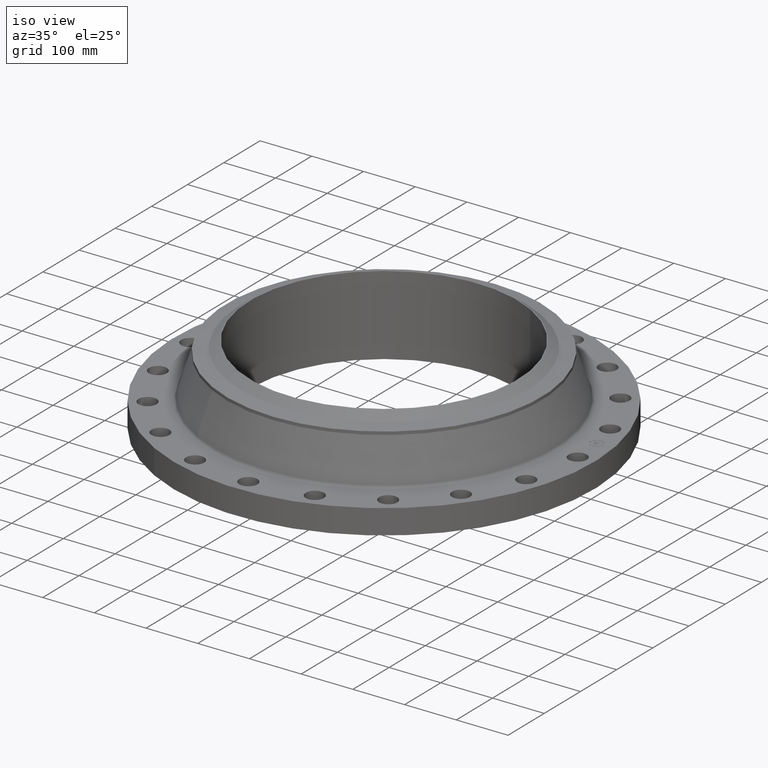
[diagram: clean part render]
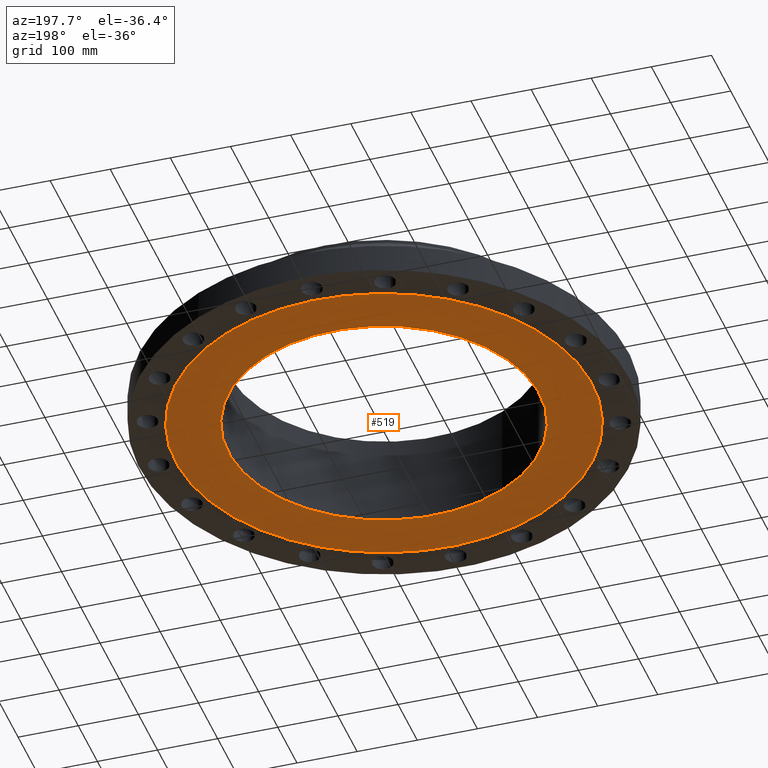
[diagram: tour spotlight — one face highlighted and labeled with its STEP entity id]
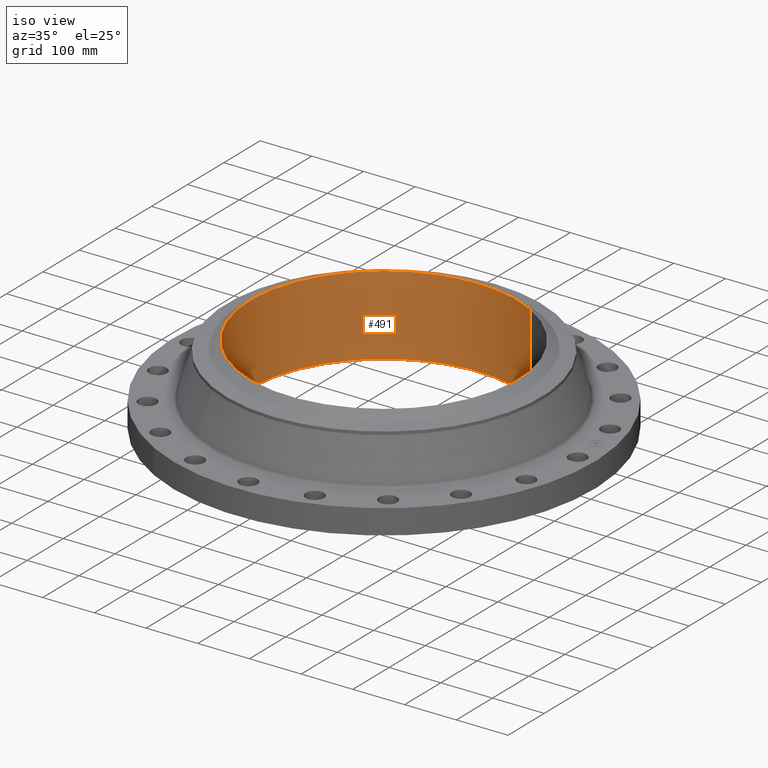
[diagram: tour spotlight — one face highlighted and labeled with its STEP entity id]
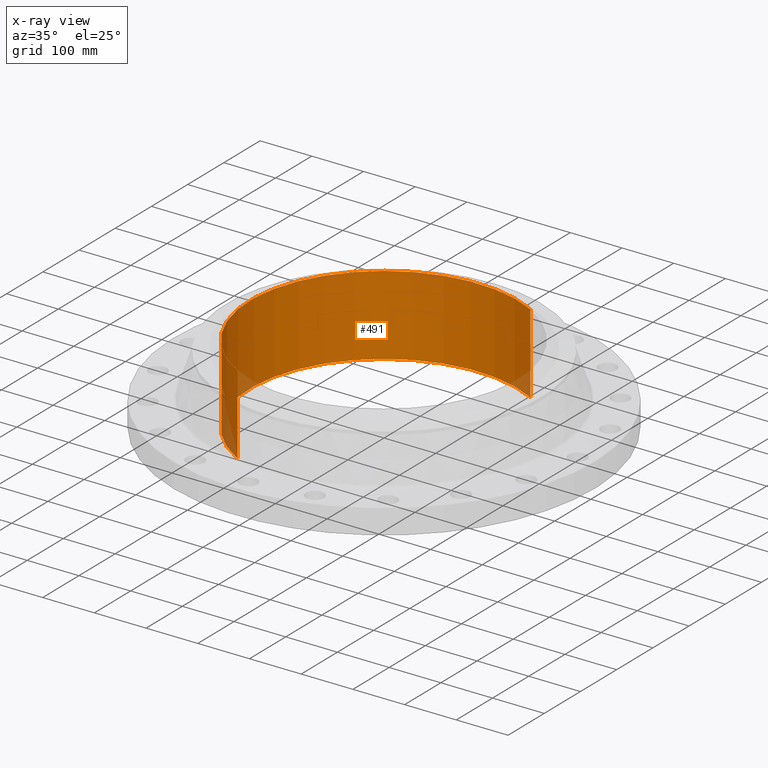
[diagram: x-ray of the same camera — body ghosted, this tour face saturated]
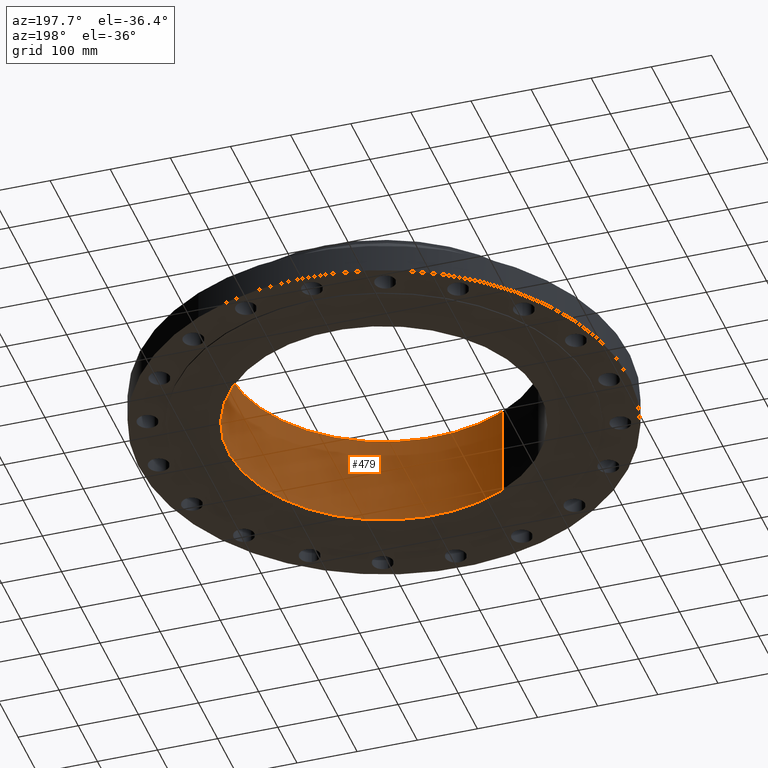
[diagram: tour spotlight — one face highlighted and labeled with its STEP entity id]
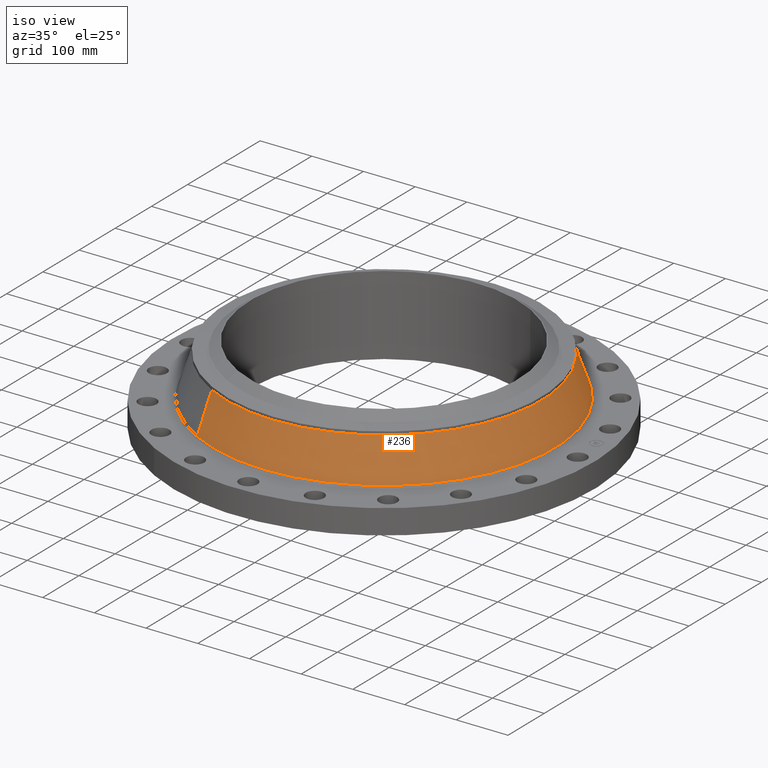
[diagram: tour spotlight — one face highlighted and labeled with its STEP entity id]
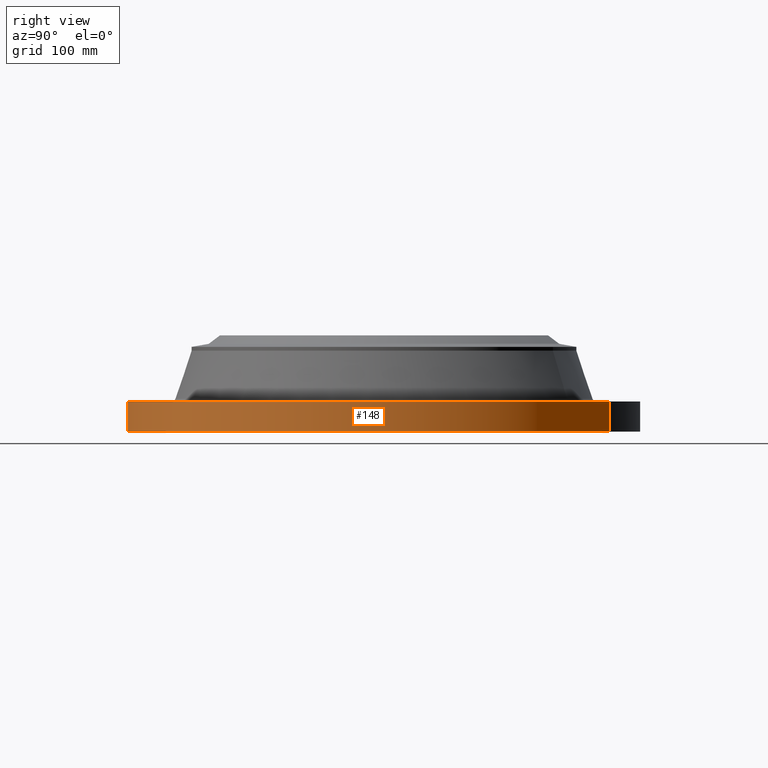
[diagram: tour spotlight — one face highlighted and labeled with its STEP entity id]
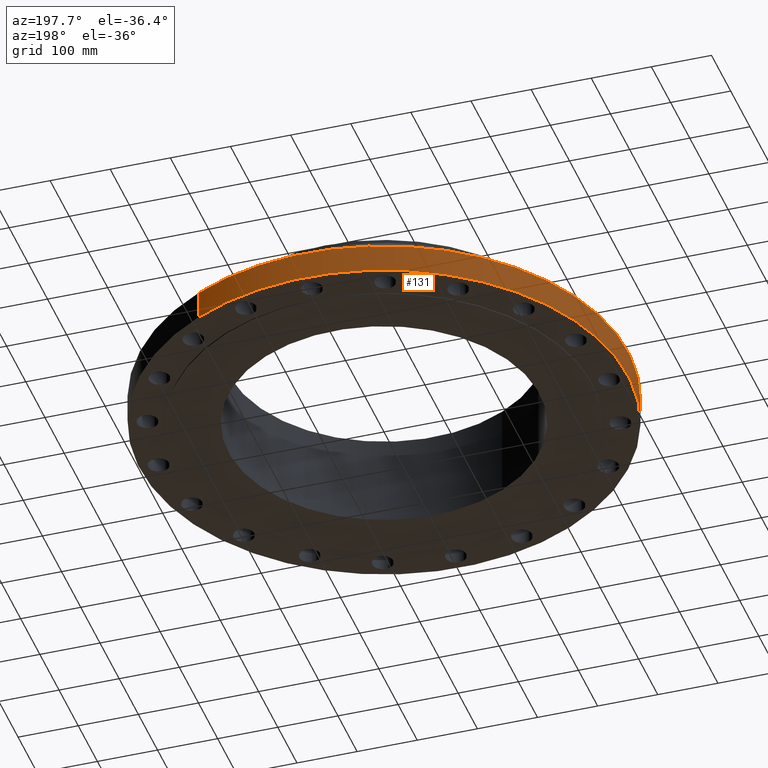
[diagram: tour spotlight — one face highlighted and labeled with its STEP entity id]
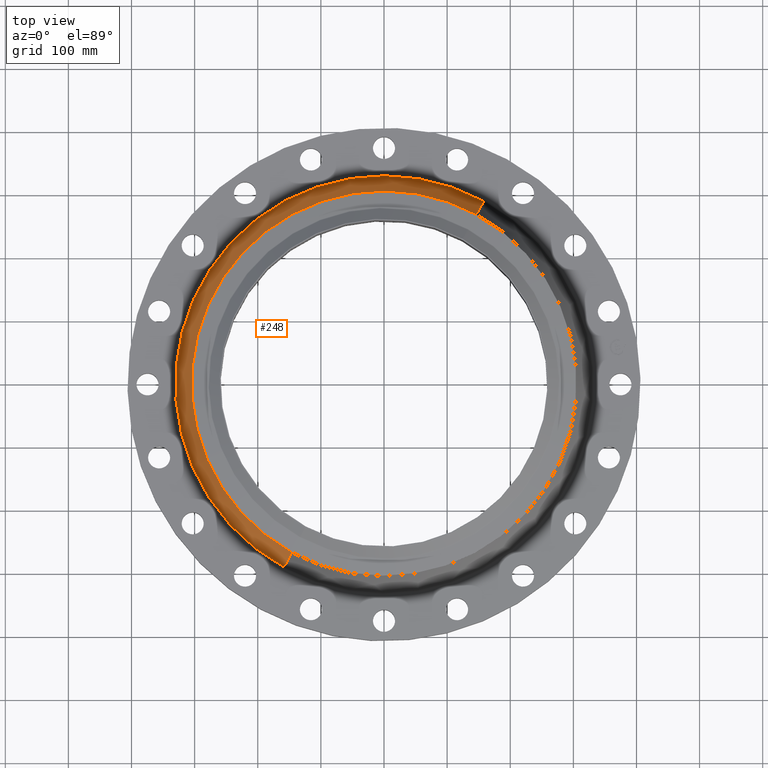
[diagram: tour spotlight — one face highlighted and labeled with its STEP entity id]
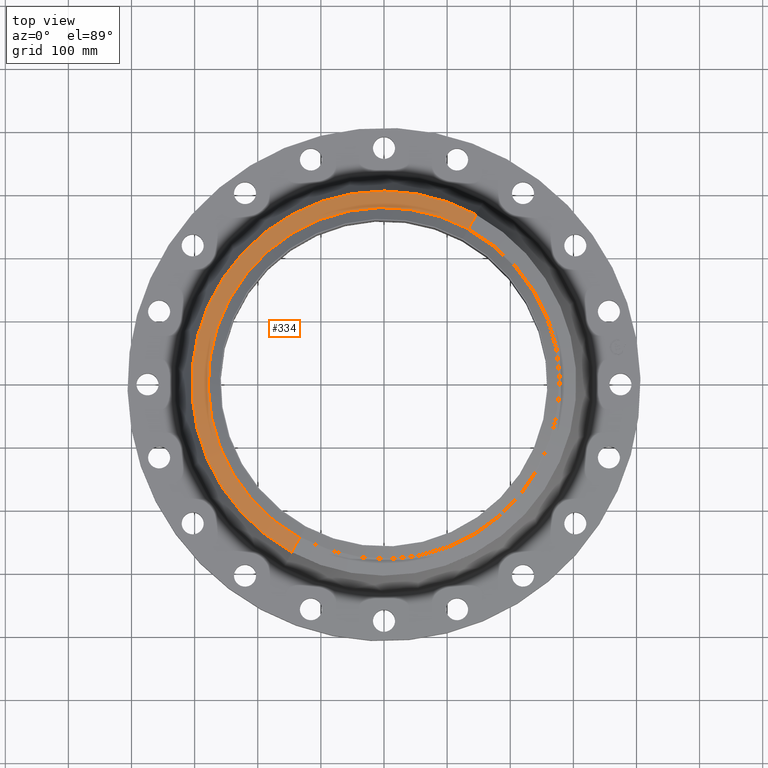
[diagram: tour spotlight — one face highlighted and labeled with its STEP entity id]
A machine part: a face-by-face anatomy tour. The part has 447 B-rep faces; the first image is the clean iso view, then the 8 largest visible faces are spotlighted one at a time (largest first), each with its STEP entity span.

Face 1 — auxiliary view, entity #519. In plain terms, the highlighted planar face has unit normal (0, 0, -1).
Definition (entity closure, byte-faithful):
#463=AXIS2_PLACEMENT_3D('Circle Axis2P3D',#461,#462,$) ;
#482=AXIS2_PLACEMENT_3D('Circle Axis2P3D',#480,#481,$) ;
#495=AXIS2_PLACEMENT_3D('Plane Axis2P3D',#492,#493,#494) ;
#499=AXIS2_PLACEMENT_3D('Circle Axis2P3D',#497,#498,$) ;
#508=AXIS2_PLACEMENT_3D('Circle Axis2P3D',#506,#507,$) ;
#458=CARTESIAN_POINT('Vertex',(4.88438738732,8.94081114057,-0.0630000000003)) ;
#461=CARTESIAN_POINT('Axis2P3D Location',(0.,0.,-0.0630000000003)) ;
#465=CARTESIAN_POINT('Vertex',(-4.88438738732,-8.94081114057,-0.0630000000003)) ;
#480=CARTESIAN_POINT('Axis2P3D Location',(0.,0.,-0.0630000000003)) ;
#492=CARTESIAN_POINT('Axis2P3D Location',(0.,10.188,-0.0630000000003)) ;
#497=CARTESIAN_POINT('Axis2P3D Location',(0.,0.,-0.0630000000003)) ;
#501=CARTESIAN_POINT('Vertex',(-6.53217296351,-11.9570624058,-0.0630000000003)) ;
#503=CARTESIAN_POINT('Vertex',(6.53217296351,11.9570624058,-0.0630000000003)) ;
#506=CARTESIAN_POINT('Axis2P3D Location',(0.,0.,-0.0630000000003)) ;
#462=DIRECTION('Axis2P3D Direction',(0.,0.,-0.0393700787402)) ;
#481=DIRECTION('Axis2P3D Direction',(0.,0.,-0.0393700787402)) ;
#493=DIRECTION('Axis2P3D Direction',(0.,0.,-0.0393700787402)) ;
#494=DIRECTION('Axis2P3D XDirection',(0.0393700787402,0.,0.)) ;
#498=DIRECTION('Axis2P3D Direction',(0.,0.,-0.0393700787402)) ;
#507=DIRECTION('Axis2P3D Direction',(0.,0.,-0.0393700787402)) ;
#512=ORIENTED_EDGE('',*,*,#505,.T.) ;
#513=ORIENTED_EDGE('',*,*,#510,.T.) ;
#516=ORIENTED_EDGE('',*,*,#467,.F.) ;
#517=ORIENTED_EDGE('',*,*,#484,.F.) ;
#518=FACE_BOUND('',#515,.T.) ;
#519=ADVANCED_FACE('PartBody',(#514,#518),#496,.T.) ;
#464=CIRCLE('generated circle',#463,10.188) ;
#483=CIRCLE('generated circle',#482,10.188) ;
#500=CIRCLE('generated circle',#499,13.6250000001) ;
#509=CIRCLE('generated circle',#508,13.6250000001) ;
#467=EDGE_CURVE('',#459,#466,#464,.T.) ;
#484=EDGE_CURVE('',#466,#459,#483,.T.) ;
#505=EDGE_CURVE('',#502,#504,#500,.T.) ;
#510=EDGE_CURVE('',#504,#502,#509,.T.) ;
#511=EDGE_LOOP('',(#512,#513)) ;
#515=EDGE_LOOP('',(#516,#517)) ;
#514=FACE_OUTER_BOUND('',#511,.T.) ;
#496=PLANE('',#495) ;
#459=VERTEX_POINT('',#458) ;
#466=VERTEX_POINT('',#465) ;
#502=VERTEX_POINT('',#501) ;
#504=VERTEX_POINT('',#503) ;

Face 2 — iso view, entity #491. An x-ray twin of the same camera follows (body ghosted, this face saturated) — the face is partly hidden behind the body. In plain terms, the highlighted cylindrical surface (partial cylindrical patch) has radius 258.775 mm, axis along (0, 0, -1).
Definition (entity closure, byte-faithful):
#432=AXIS2_PLACEMENT_3D('Circle Axis2P3D',#430,#431,$) ;
#452=AXIS2_PLACEMENT_3D('Cylinder Axis2P3D',#449,#450,#451) ;
#482=AXIS2_PLACEMENT_3D('Circle Axis2P3D',#480,#481,$) ;
#430=CARTESIAN_POINT('Axis2P3D Location',(-2.23792987641E-015,-1.1189649382E-015,6.00000000002)) ;
#434=CARTESIAN_POINT('Vertex',(-4.88438738732,-8.94081114057,6.00000000002)) ;
#436=CARTESIAN_POINT('Vertex',(4.88438738732,8.94081114057,6.00000000002)) ;
#449=CARTESIAN_POINT('Axis2P3D Location',(0.,0.,3.01850000001)) ;
#454=CARTESIAN_POINT('Line Origine',(4.88438738732,8.94081114057,2.96850000001)) ;
#458=CARTESIAN_POINT('Vertex',(4.88438738732,8.94081114057,-0.0630000000003)) ;
#465=CARTESIAN_POINT('Vertex',(-4.88438738732,-8.94081114057,-0.0630000000003)) ;
#468=CARTESIAN_POINT('Line Origine',(-4.88438738732,-8.94081114057,2.96850000001)) ;
#480=CARTESIAN_POINT('Axis2P3D Location',(0.,0.,-0.0630000000003)) ;
#431=DIRECTION('Axis2P3D Direction',(0.,-0.,-0.0393700787402)) ;
#450=DIRECTION('Axis2P3D Direction',(0.,0.,-0.0393700787402)) ;
#451=DIRECTION('Axis2P3D XDirection',(-0.0188750212049,-0.0345504945626,0.)) ;
#455=DIRECTION('Vector Direction',(0.,0.,-0.0393700787402)) ;
#469=DIRECTION('Vector Direction',(0.,0.,-0.0393700787402)) ;
#481=DIRECTION('Axis2P3D Direction',(0.,0.,-0.0393700787402)) ;
#456=VECTOR('Line Direction',#455,0.0393700787402) ;
#470=VECTOR('Line Direction',#469,0.0393700787402) ;
#486=ORIENTED_EDGE('',*,*,#472,.T.) ;
#487=ORIENTED_EDGE('',*,*,#484,.T.) ;
#488=ORIENTED_EDGE('',*,*,#460,.F.) ;
#489=ORIENTED_EDGE('',*,*,#438,.F.) ;
#491=ADVANCED_FACE('PartBody',(#490),#453,.F.) ;
#433=CIRCLE('generated circle',#432,10.188) ;
#483=CIRCLE('generated circle',#482,10.188) ;
#453=CYLINDRICAL_SURFACE('generated cylinder',#452,10.188) ;
#438=EDGE_CURVE('',#435,#437,#433,.T.) ;
#460=EDGE_CURVE('',#437,#459,#457,.T.) ;
#472=EDGE_CURVE('',#435,#466,#471,.T.) ;
#484=EDGE_CURVE('',#466,#459,#483,.T.) ;
#485=EDGE_LOOP('',(#486,#487,#488,#489)) ;
#490=FACE_OUTER_BOUND('',#485,.T.) ;
#457=LINE('Line',#454,#456) ;
#471=LINE('Line',#468,#470) ;
#435=VERTEX_POINT('',#434) ;
#437=VERTEX_POINT('',#436) ;
#459=VERTEX_POINT('',#458) ;
#466=VERTEX_POINT('',#465) ;

Face 3 — auxiliary view, entity #479. In plain terms, the highlighted cylindrical surface (partial cylindrical patch) has radius 258.775 mm, axis along (0, 0, -1).
Definition (entity closure, byte-faithful):
#441=AXIS2_PLACEMENT_3D('Circle Axis2P3D',#439,#440,$) ;
#452=AXIS2_PLACEMENT_3D('Cylinder Axis2P3D',#449,#450,#451) ;
#463=AXIS2_PLACEMENT_3D('Circle Axis2P3D',#461,#462,$) ;
#434=CARTESIAN_POINT('Vertex',(-4.88438738732,-8.94081114057,6.00000000002)) ;
#436=CARTESIAN_POINT('Vertex',(4.88438738732,8.94081114057,6.00000000002)) ;
#439=CARTESIAN_POINT('Axis2P3D Location',(4.47585975282E-015,5.59482469102E-016,6.00000000002)) ;
#449=CARTESIAN_POINT('Axis2P3D Location',(0.,0.,3.01850000001)) ;
#454=CARTESIAN_POINT('Line Origine',(4.88438738732,8.94081114057,2.96850000001)) ;
#458=CARTESIAN_POINT('Vertex',(4.88438738732,8.94081114057,-0.0630000000003)) ;
#461=CARTESIAN_POINT('Axis2P3D Location',(0.,0.,-0.0630000000003)) ;
#465=CARTESIAN_POINT('Vertex',(-4.88438738732,-8.94081114057,-0.0630000000003)) ;
#468=CARTESIAN_POINT('Line Origine',(-4.88438738732,-8.94081114057,2.96850000001)) ;
#440=DIRECTION('Axis2P3D Direction',(0.,-0.,-0.0393700787402)) ;
#450=DIRECTION('Axis2P3D Direction',(0.,0.,-0.0393700787402)) ;
#451=DIRECTION('Axis2P3D XDirection',(-0.0188750212049,-0.0345504945626,0.)) ;
#455=DIRECTION('Vector Direction',(0.,0.,-0.0393700787402)) ;
#462=DIRECTION('Axis2P3D Direction',(0.,0.,-0.0393700787402)) ;
#469=DIRECTION('Vector Direction',(0.,0.,-0.0393700787402)) ;
#456=VECTOR('Line Direction',#455,0.0393700787402) ;
#470=VECTOR('Line Direction',#469,0.0393700787402) ;
#474=ORIENTED_EDGE('',*,*,#460,.T.) ;
#475=ORIENTED_EDGE('',*,*,#467,.T.) ;
#476=ORIENTED_EDGE('',*,*,#472,.F.) ;
#477=ORIENTED_EDGE('',*,*,#443,.F.) ;
#479=ADVANCED_FACE('PartBody',(#478),#453,.F.) ;
#442=CIRCLE('generated circle',#441,10.188) ;
#464=CIRCLE('generated circle',#463,10.188) ;
#453=CYLINDRICAL_SURFACE('generated cylinder',#452,10.188) ;
#443=EDGE_CURVE('',#437,#435,#442,.T.) ;
#460=EDGE_CURVE('',#437,#459,#457,.T.) ;
#467=EDGE_CURVE('',#459,#466,#464,.T.) ;
#472=EDGE_CURVE('',#435,#466,#471,.T.) ;
#473=EDGE_LOOP('',(#474,#475,#476,#477)) ;
#478=FACE_OUTER_BOUND('',#473,.T.) ;
#457=LINE('Line',#454,#456) ;
#471=LINE('Line',#468,#470) ;
#435=VERTEX_POINT('',#434) ;
#437=VERTEX_POINT('',#436) ;
#459=VERTEX_POINT('',#458) ;
#466=VERTEX_POINT('',#465) ;

Face 4 — iso view, entity #236. In plain terms, the highlighted conical surface has half-angle 18.576 deg.
Definition (entity closure, byte-faithful):
#172=AXIS2_PLACEMENT_3D('Circle Axis2P3D',#170,#171,$) ;
#209=AXIS2_PLACEMENT_3D('Cone Axis2P3D',#206,#207,#208) ;
#220=AXIS2_PLACEMENT_3D('Circle Axis2P3D',#218,#219,$) ;
#167=CARTESIAN_POINT('Vertex',(6.23624622824,11.4153721504,2.05035963429)) ;
#170=CARTESIAN_POINT('Axis2P3D Location',(0.,0.,2.05035963429)) ;
#174=CARTESIAN_POINT('Vertex',(-6.23624622824,-11.4153721504,2.05035963429)) ;
#206=CARTESIAN_POINT('Axis2P3D Location',(0.,0.,5.04898296983)) ;
#211=CARTESIAN_POINT('Line Origine',(5.99467634576,10.9731814465,3.54967130206)) ;
#215=CARTESIAN_POINT('Vertex',(5.75310646327,10.5309907427,5.04898296983)) ;
#218=CARTESIAN_POINT('Axis2P3D Location',(0.,0.,5.04898296983)) ;
#222=CARTESIAN_POINT('Vertex',(-5.75310646327,-10.5309907427,5.04898296983)) ;
#225=CARTESIAN_POINT('Line Origine',(-5.99467634576,-10.9731814465,3.54967130206)) ;
#171=DIRECTION('Axis2P3D Direction',(0.,0.,-0.0393700787402)) ;
#207=DIRECTION('Axis2P3D Direction',(0.,0.,-0.0393700787402)) ;
#208=DIRECTION('Axis2P3D XDirection',(-0.0188750212049,-0.0345504945626,0.)) ;
#212=DIRECTION('Vector Direction',(0.00601285436658,0.0110064560905,-0.0373189845347)) ;
#219=DIRECTION('Axis2P3D Direction',(0.,0.,-0.0393700787402)) ;
#226=DIRECTION('Vector Direction',(-0.00601285436658,-0.0110064560905,-0.0373189845347)) ;
#213=VECTOR('Line Direction',#212,0.0393700787402) ;
#227=VECTOR('Line Direction',#226,0.0393700787402) ;
#231=ORIENTED_EDGE('',*,*,#176,.F.) ;
#232=ORIENTED_EDGE('',*,*,#217,.T.) ;
#233=ORIENTED_EDGE('',*,*,#224,.T.) ;
#234=ORIENTED_EDGE('',*,*,#229,.F.) ;
#236=ADVANCED_FACE('PartBody',(#235),#210,.T.) ;
#173=CIRCLE('generated circle',#172,13.0077472435) ;
#221=CIRCLE('generated circle',#220,12.) ;
#210=CONICAL_SURFACE('Cone',#209,12.,0.324211498721) ;
#176=EDGE_CURVE('',#168,#175,#173,.T.) ;
#217=EDGE_CURVE('',#168,#216,#214,.F.) ;
#224=EDGE_CURVE('',#216,#223,#221,.T.) ;
#229=EDGE_CURVE('',#175,#223,#228,.F.) ;
#230=EDGE_LOOP('',(#231,#232,#233,#234)) ;
#235=FACE_OUTER_BOUND('',#230,.T.) ;
#214=LINE('Line',#211,#213) ;
#228=LINE('Line',#225,#227) ;
#168=VERTEX_POINT('',#167) ;
#175=VERTEX_POINT('',#174) ;
#216=VERTEX_POINT('',#215) ;
#223=VERTEX_POINT('',#222) ;

Face 5 — right view, entity #148. In plain terms, the highlighted cylindrical surface (partial cylindrical patch) has radius 406.4 mm, axis along (0, 0, -1).
Definition (entity closure, byte-faithful):
#95=AXIS2_PLACEMENT_3D('Cylinder Axis2P3D',#92,#93,#94) ;
#134=AXIS2_PLACEMENT_3D('Circle Axis2P3D',#132,#133,$) ;
#139=AXIS2_PLACEMENT_3D('Circle Axis2P3D',#137,#138,$) ;
#92=CARTESIAN_POINT('Axis2P3D Location',(0.,0.,3.01850000001)) ;
#101=CARTESIAN_POINT('Vertex',(-7.6708086177,-14.0413209903,2.23792987641E-015)) ;
#103=CARTESIAN_POINT('Vertex',(7.6708086177,14.0413209903,2.23792987641E-015)) ;
#106=CARTESIAN_POINT('Line Origine',(-7.6708086177,-14.0413209903,0.940000000004)) ;
#110=CARTESIAN_POINT('Vertex',(-7.6708086177,-14.0413209903,1.88000000001)) ;
#117=CARTESIAN_POINT('Vertex',(7.6708086177,14.0413209903,1.88000000001)) ;
#120=CARTESIAN_POINT('Line Origine',(7.6708086177,14.0413209903,0.940000000004)) ;
#132=CARTESIAN_POINT('Axis2P3D Location',(0.,0.,1.67844740731E-015)) ;
#137=CARTESIAN_POINT('Axis2P3D Location',(0.,0.,1.88000000001)) ;
#93=DIRECTION('Axis2P3D Direction',(0.,0.,-0.0393700787402)) ;
#94=DIRECTION('Axis2P3D XDirection',(0.0188750212049,0.0345504945626,0.)) ;
#107=DIRECTION('Vector Direction',(0.,0.,-0.0393700787402)) ;
#121=DIRECTION('Vector Direction',(0.,0.,-0.0393700787402)) ;
#133=DIRECTION('Axis2P3D Direction',(0.,0.,-0.0393700787402)) ;
#138=DIRECTION('Axis2P3D Direction',(0.,0.,-0.0393700787402)) ;
#108=VECTOR('Line Direction',#107,0.0393700787402) ;
#122=VECTOR('Line Direction',#121,0.0393700787402) ;
#143=ORIENTED_EDGE('',*,*,#136,.F.) ;
#144=ORIENTED_EDGE('',*,*,#124,.T.) ;
#145=ORIENTED_EDGE('',*,*,#141,.T.) ;
#146=ORIENTED_EDGE('',*,*,#112,.F.) ;
#148=ADVANCED_FACE('PartBody',(#147),#96,.T.) ;
#135=CIRCLE('generated circle',#134,16.0000000001) ;
#140=CIRCLE('generated circle',#139,16.0000000001) ;
#96=CYLINDRICAL_SURFACE('generated cylinder',#95,16.0000000001) ;
#112=EDGE_CURVE('',#102,#111,#109,.F.) ;
#124=EDGE_CURVE('',#104,#118,#123,.F.) ;
#136=EDGE_CURVE('',#104,#102,#135,.T.) ;
#141=EDGE_CURVE('',#118,#111,#140,.T.) ;
#142=EDGE_LOOP('',(#143,#144,#145,#146)) ;
#147=FACE_OUTER_BOUND('',#142,.T.) ;
#109=LINE('Line',#106,#108) ;
#123=LINE('Line',#120,#122) ;
#102=VERTEX_POINT('',#101) ;
#104=VERTEX_POINT('',#103) ;
#111=VERTEX_POINT('',#110) ;
#118=VERTEX_POINT('',#117) ;

Face 6 — auxiliary view, entity #131. In plain terms, the highlighted cylindrical surface (partial cylindrical patch) has radius 406.4 mm, axis along (0, 0, -1).
Definition (entity closure, byte-faithful):
#95=AXIS2_PLACEMENT_3D('Cylinder Axis2P3D',#92,#93,#94) ;
#99=AXIS2_PLACEMENT_3D('Circle Axis2P3D',#97,#98,$) ;
#115=AXIS2_PLACEMENT_3D('Circle Axis2P3D',#113,#114,$) ;
#92=CARTESIAN_POINT('Axis2P3D Location',(0.,0.,3.01850000001)) ;
#97=CARTESIAN_POINT('Axis2P3D Location',(0.,0.,1.67844740731E-015)) ;
#101=CARTESIAN_POINT('Vertex',(-7.6708086177,-14.0413209903,2.23792987641E-015)) ;
#103=CARTESIAN_POINT('Vertex',(7.6708086177,14.0413209903,2.23792987641E-015)) ;
#106=CARTESIAN_POINT('Line Origine',(-7.6708086177,-14.0413209903,0.940000000004)) ;
#110=CARTESIAN_POINT('Vertex',(-7.6708086177,-14.0413209903,1.88000000001)) ;
#113=CARTESIAN_POINT('Axis2P3D Location',(0.,0.,1.88000000001)) ;
#117=CARTESIAN_POINT('Vertex',(7.6708086177,14.0413209903,1.88000000001)) ;
#120=CARTESIAN_POINT('Line Origine',(7.6708086177,14.0413209903,0.940000000004)) ;
#93=DIRECTION('Axis2P3D Direction',(0.,0.,-0.0393700787402)) ;
#94=DIRECTION('Axis2P3D XDirection',(0.0188750212049,0.0345504945626,0.)) ;
#98=DIRECTION('Axis2P3D Direction',(0.,0.,-0.0393700787402)) ;
#107=DIRECTION('Vector Direction',(0.,0.,-0.0393700787402)) ;
#114=DIRECTION('Axis2P3D Direction',(0.,0.,-0.0393700787402)) ;
#121=DIRECTION('Vector Direction',(0.,0.,-0.0393700787402)) ;
#108=VECTOR('Line Direction',#107,0.0393700787402) ;
#122=VECTOR('Line Direction',#121,0.0393700787402) ;
#126=ORIENTED_EDGE('',*,*,#105,.F.) ;
#127=ORIENTED_EDGE('',*,*,#112,.T.) ;
#128=ORIENTED_EDGE('',*,*,#119,.T.) ;
#129=ORIENTED_EDGE('',*,*,#124,.F.) ;
#131=ADVANCED_FACE('PartBody',(#130),#96,.T.) ;
#100=CIRCLE('generated circle',#99,16.0000000001) ;
#116=CIRCLE('generated circle',#115,16.0000000001) ;
#96=CYLINDRICAL_SURFACE('generated cylinder',#95,16.0000000001) ;
#105=EDGE_CURVE('',#102,#104,#100,.T.) ;
#112=EDGE_CURVE('',#102,#111,#109,.F.) ;
#119=EDGE_CURVE('',#111,#118,#116,.T.) ;
#124=EDGE_CURVE('',#104,#118,#123,.F.) ;
#125=EDGE_LOOP('',(#126,#127,#128,#129)) ;
#130=FACE_OUTER_BOUND('',#125,.T.) ;
#109=LINE('Line',#106,#108) ;
#123=LINE('Line',#120,#122) ;
#102=VERTEX_POINT('',#101) ;
#104=VERTEX_POINT('',#103) ;
#111=VERTEX_POINT('',#110) ;
#118=VERTEX_POINT('',#117) ;

Face 7 — top view, entity #248. In plain terms, the highlighted conical surface has half-angle 18.576 deg.
Definition (entity closure, byte-faithful):
#196=AXIS2_PLACEMENT_3D('Circle Axis2P3D',#194,#195,$) ;
#209=AXIS2_PLACEMENT_3D('Cone Axis2P3D',#206,#207,#208) ;
#239=AXIS2_PLACEMENT_3D('Circle Axis2P3D',#237,#238,$) ;
#167=CARTESIAN_POINT('Vertex',(6.23624622824,11.4153721504,2.05035963429)) ;
#174=CARTESIAN_POINT('Vertex',(-6.23624622824,-11.4153721504,2.05035963429)) ;
#194=CARTESIAN_POINT('Axis2P3D Location',(0.,0.,2.05035963429)) ;
#206=CARTESIAN_POINT('Axis2P3D Location',(0.,0.,5.04898296983)) ;
#211=CARTESIAN_POINT('Line Origine',(5.99467634576,10.9731814465,3.54967130206)) ;
#215=CARTESIAN_POINT('Vertex',(5.75310646327,10.5309907427,5.04898296983)) ;
#222=CARTESIAN_POINT('Vertex',(-5.75310646327,-10.5309907427,5.04898296983)) ;
#225=CARTESIAN_POINT('Line Origine',(-5.99467634576,-10.9731814465,3.54967130206)) ;
#237=CARTESIAN_POINT('Axis2P3D Location',(0.,0.,5.04898296983)) ;
#195=DIRECTION('Axis2P3D Direction',(0.,0.,-0.0393700787402)) ;
#207=DIRECTION('Axis2P3D Direction',(0.,0.,-0.0393700787402)) ;
#208=DIRECTION('Axis2P3D XDirection',(-0.0188750212049,-0.0345504945626,0.)) ;
#212=DIRECTION('Vector Direction',(0.00601285436658,0.0110064560905,-0.0373189845347)) ;
#226=DIRECTION('Vector Direction',(-0.00601285436658,-0.0110064560905,-0.0373189845347)) ;
#238=DIRECTION('Axis2P3D Direction',(0.,0.,-0.0393700787402)) ;
#213=VECTOR('Line Direction',#212,0.0393700787402) ;
#227=VECTOR('Line Direction',#226,0.0393700787402) ;
#243=ORIENTED_EDGE('',*,*,#198,.F.) ;
#244=ORIENTED_EDGE('',*,*,#229,.T.) ;
#245=ORIENTED_EDGE('',*,*,#241,.T.) ;
#246=ORIENTED_EDGE('',*,*,#217,.F.) ;
#248=ADVANCED_FACE('PartBody',(#247),#210,.T.) ;
#197=CIRCLE('generated circle',#196,13.0077472435) ;
#240=CIRCLE('generated circle',#239,12.) ;
#210=CONICAL_SURFACE('Cone',#209,12.,0.324211498721) ;
#198=EDGE_CURVE('',#175,#168,#197,.T.) ;
#217=EDGE_CURVE('',#168,#216,#214,.F.) ;
#229=EDGE_CURVE('',#175,#223,#228,.F.) ;
#241=EDGE_CURVE('',#223,#216,#240,.T.) ;
#242=EDGE_LOOP('',(#243,#244,#245,#246)) ;
#247=FACE_OUTER_BOUND('',#242,.T.) ;
#214=LINE('Line',#211,#213) ;
#228=LINE('Line',#225,#227) ;
#168=VERTEX_POINT('',#167) ;
#175=VERTEX_POINT('',#174) ;
#216=VERTEX_POINT('',#215) ;
#223=VERTEX_POINT('',#222) ;

Face 8 — top view, entity #334. In plain terms, the highlighted conical surface has half-angle 80 deg.
Definition (entity closure, byte-faithful):
#282=AXIS2_PLACEMENT_3D('Circle Axis2P3D',#280,#281,$) ;
#295=AXIS2_PLACEMENT_3D('Cone Axis2P3D',#292,#293,#294) ;
#325=AXIS2_PLACEMENT_3D('Circle Axis2P3D',#323,#324,$) ;
#258=CARTESIAN_POINT('Vertex',(-5.75310646327,-10.5309907427,5.28520344227)) ;
#265=CARTESIAN_POINT('Vertex',(5.75310646327,10.5309907427,5.28520344227)) ;
#280=CARTESIAN_POINT('Axis2P3D Location',(0.,0.,5.28520344227)) ;
#292=CARTESIAN_POINT('Axis2P3D Location',(0.,0.,5.46715126594)) ;
#297=CARTESIAN_POINT('Line Origine',(5.50575227786,10.0782119434,5.37617735411)) ;
#301=CARTESIAN_POINT('Vertex',(5.25839809244,9.62543314408,5.46715126594)) ;
#308=CARTESIAN_POINT('Vertex',(-5.25839809244,-9.62543314408,5.46715126594)) ;
#311=CARTESIAN_POINT('Line Origine',(-5.50575227786,-10.0782119434,5.37617735411)) ;
#323=CARTESIAN_POINT('Axis2P3D Location',(0.,0.,5.46715126594)) ;
#281=DIRECTION('Axis2P3D Direction',(0.,0.,-0.0393700787402)) ;
#293=DIRECTION('Axis2P3D Direction',(-0.,-0.,-0.0393700787402)) ;
#294=DIRECTION('Axis2P3D XDirection',(-0.0188750212049,-0.0345504945626,0.)) ;
#298=DIRECTION('Vector Direction',(0.0185882672208,0.0340255949157,-0.00683654242783)) ;
#312=DIRECTION('Vector Direction',(-0.0185882672208,-0.0340255949157,-0.00683654242783)) ;
#324=DIRECTION('Axis2P3D Direction',(0.,-0.,-0.0393700787402)) ;
#299=VECTOR('Line Direction',#298,0.0393700787402) ;
#313=VECTOR('Line Direction',#312,0.0393700787402) ;
#329=ORIENTED_EDGE('',*,*,#315,.F.) ;
#330=ORIENTED_EDGE('',*,*,#327,.T.) ;
#331=ORIENTED_EDGE('',*,*,#303,.T.) ;
#332=ORIENTED_EDGE('',*,*,#284,.F.) ;
#334=ADVANCED_FACE('PartBody',(#333),#296,.T.) ;
#283=CIRCLE('generated circle',#282,12.) ;
#326=CIRCLE('generated circle',#325,10.9681226155) ;
#296=CONICAL_SURFACE('Cone',#295,10.9681226155,1.3962634016) ;
#284=EDGE_CURVE('',#259,#266,#283,.T.) ;
#303=EDGE_CURVE('',#302,#266,#300,.T.) ;
#315=EDGE_CURVE('',#309,#259,#314,.T.) ;
#327=EDGE_CURVE('',#309,#302,#326,.T.) ;
#328=EDGE_LOOP('',(#329,#330,#331,#332)) ;
#333=FACE_OUTER_BOUND('',#328,.T.) ;
#300=LINE('Line',#297,#299) ;
#314=LINE('Line',#311,#313) ;
#259=VERTEX_POINT('',#258) ;
#266=VERTEX_POINT('',#265) ;
#302=VERTEX_POINT('',#301) ;
#309=VERTEX_POINT('',#308) ;